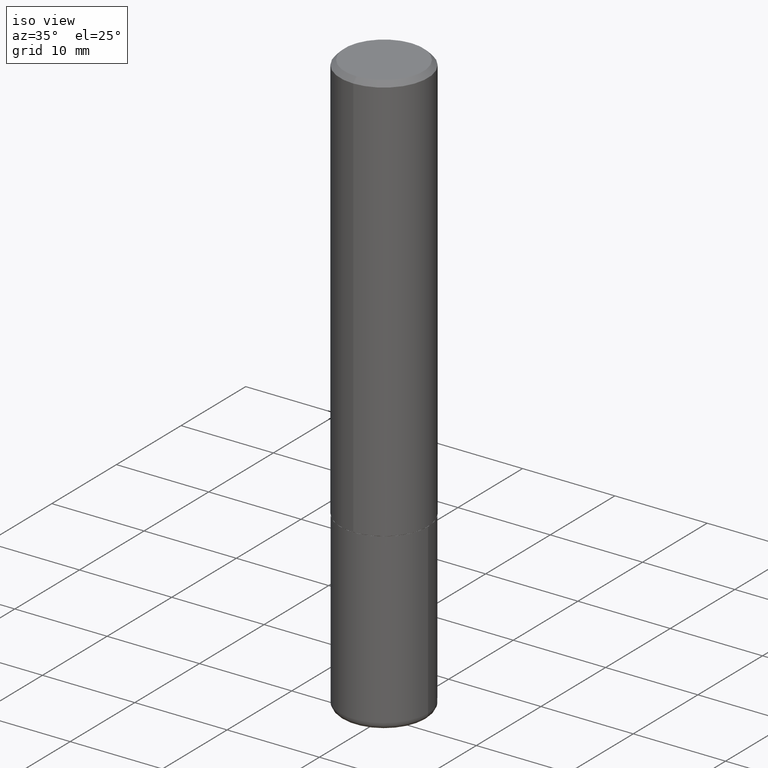
[diagram: clean part render]
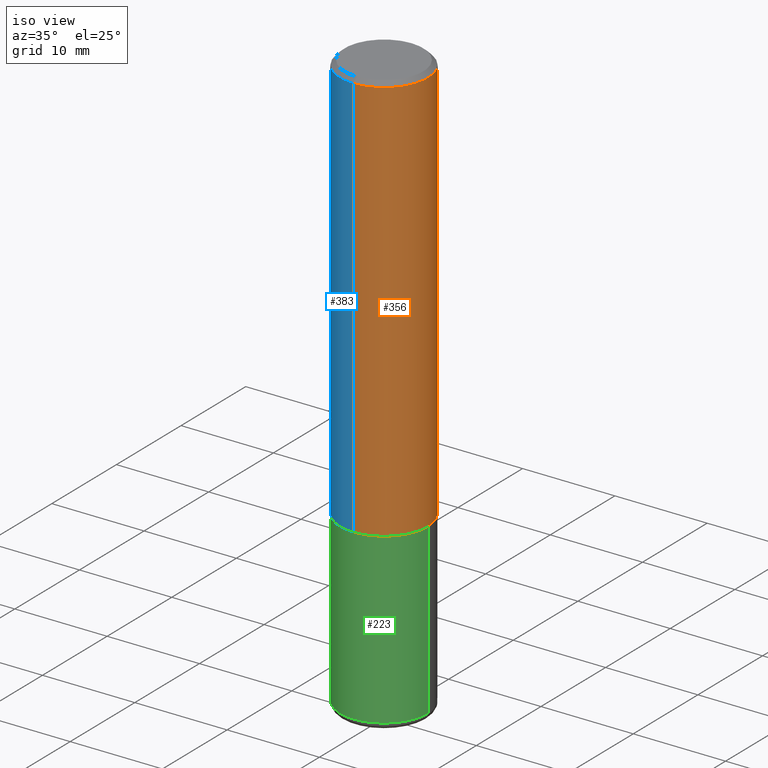
[diagram: same view with three faces highlighted in distinct colors, each labeled with its STEP entity id]
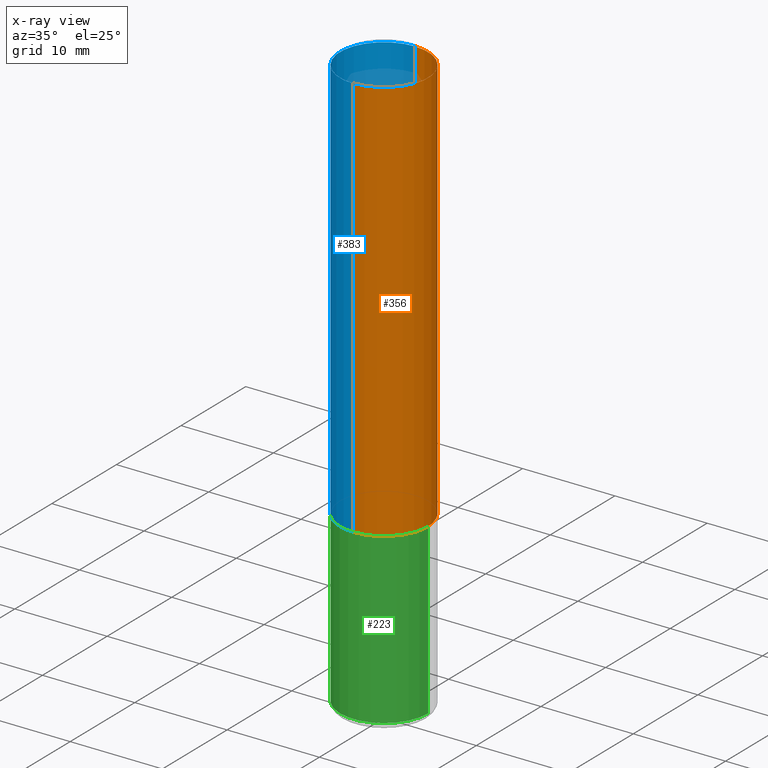
[diagram: x-ray of the same camera — body ghosted, the three highlighted faces saturated]
A machine part, iso view with three faces highlighted in distinct colors.
The next image is the same camera in x-ray (body ghosted, the three faces saturated) — at least one of them is partly hidden behind the body in this view.
Their STEP definitions:

[orange] entity #356 — the highlighted cylindrical surface (partial cylindrical patch) has radius 4.7625 mm, axis along (-0, 0, 1).
#11 = CARTESIAN_POINT ( 'NONE',  ( -1.286343374582161774E-15, -0.1875000000000001110, -0.01999999999999938632 ) ) ;
#16 = VECTOR ( 'NONE', #373, 39.37007874015748143 ) ;
#17 = DIRECTION ( 'NONE',  ( -6.982962677686265922E-15, -1.000000000000000000, 2.913971193241877216E-15 ) ) ;
#22 = CARTESIAN_POINT ( 'NONE',  ( -1.309305502066175797E-15, -0.1875000000000001110, 6.549179349999783826E-16 ) ) ;
#25 = ORIENTED_EDGE ( 'NONE', *, *, #99, .F. ) ;
#26 = EDGE_CURVE ( 'NONE', #118, #397, #109, .T. ) ;
#27 = DIRECTION ( 'NONE',  ( -2.444481195655269587E-29, 3.492895653333215411E-15, 1.000000000000000000 ) ) ;
#45 = DIRECTION ( 'NONE',  ( -2.444481195655269307E-29, 3.492895653333215411E-15, 1.000000000000000000 ) ) ;
#58 = FACE_OUTER_BOUND ( 'NONE', #161, .T. ) ;
#65 = CYLINDRICAL_SURFACE ( 'NONE', #267, 0.1875000000000001110 ) ;
#73 = CARTESIAN_POINT ( 'NONE',  ( 1.332267629550188440E-15, 0.1875000000000001110, -6.549179349999783826E-16 ) ) ;
#93 = ORIENTED_EDGE ( 'NONE', *, *, #289, .F. ) ;
#99 = EDGE_CURVE ( 'NONE', #264, #105, #112, .T. ) ;
#101 = AXIS2_PLACEMENT_3D ( 'NONE', #234, #113, #340 ) ;
#105 = VERTEX_POINT ( 'NONE', #271 ) ;
#109 = CIRCLE ( 'NONE', #394, 0.1875000000000002220 ) ;
#112 = CIRCLE ( 'NONE', #101, 0.1875000000000000555 ) ;
#113 = DIRECTION ( 'NONE',  ( -2.444481195655269587E-29, 3.492895653333215411E-15, 1.000000000000000000 ) ) ;
#118 = VERTEX_POINT ( 'NONE', #366 ) ;
#134 = LINE ( 'NONE', #22, #16 ) ;
#161 = EDGE_LOOP ( 'NONE', ( #273, #228, #25, #93 ) ) ;
#208 = EDGE_CURVE ( 'NONE', #397, #105, #334, .T. ) ;
#228 = ORIENTED_EDGE ( 'NONE', *, *, #208, .T. ) ;
#234 = CARTESIAN_POINT ( 'NONE',  ( 4.888962391310548493E-31, -6.985791306666444725E-17, -0.02000000000000003858 ) ) ;
#264 = VERTEX_POINT ( 'NONE', #11 ) ;
#267 = AXIS2_PLACEMENT_3D ( 'NONE', #288, #27, #414 ) ;
#271 = CARTESIAN_POINT ( 'NONE',  ( 1.309305502066175797E-15, 0.1874999999999999722, -0.02000000000000069084 ) ) ;
#273 = ORIENTED_EDGE ( 'NONE', *, *, #26, .T. ) ;
#288 = CARTESIAN_POINT ( 'NONE',  ( 0.000000000000000000, 0.000000000000000000, 0.000000000000000000 ) ) ;
#289 = EDGE_CURVE ( 'NONE', #118, #264, #134, .T. ) ;
#334 = LINE ( 'NONE', #73, #403 ) ;
#339 = CARTESIAN_POINT ( 'NONE',  ( 1.332267629550210528E-15, 0.1874999999999941158, -1.749000000000000554 ) ) ;
#340 = DIRECTION ( 'NONE',  ( -6.982962677686265922E-15, -1.000000000000000000, 3.483106191921934371E-15 ) ) ;
#342 = DIRECTION ( 'NONE',  ( -2.444481195655269587E-29, 3.492895653333215411E-15, 1.000000000000000000 ) ) ;
#356 = ADVANCED_FACE ( 'NONE', ( #58 ), #65, .T. ) ;
#366 = CARTESIAN_POINT ( 'NONE',  ( -1.309305502066133790E-15, -0.1875000000000063283, -1.748999999999999666 ) ) ;
#372 = CARTESIAN_POINT ( 'NONE',  ( 4.275397611201066851E-29, -6.109074497679794088E-15, -1.749000000000000110 ) ) ;
#373 = DIRECTION ( 'NONE',  ( -2.444481195655269307E-29, 3.492895653333215411E-15, 1.000000000000000000 ) ) ;
#394 = AXIS2_PLACEMENT_3D ( 'NONE', #372, #342, #17 ) ;
#397 = VERTEX_POINT ( 'NONE', #339 ) ;
#403 = VECTOR ( 'NONE', #45, 39.37007874015748143 ) ;
#414 = DIRECTION ( 'NONE',  ( -6.982962677686266711E-15, -1.000000000000000000, 3.492895653333215805E-15 ) ) ;

[blue] entity #383 — the highlighted cylindrical surface (partial cylindrical patch) has radius 4.7625 mm, axis along (-0, 0, 1).
#11 = CARTESIAN_POINT ( 'NONE',  ( -1.286343374582161774E-15, -0.1875000000000001110, -0.01999999999999938632 ) ) ;
#14 = DIRECTION ( 'NONE',  ( -6.982962677686265922E-15, -1.000000000000000000, 3.483106191921934371E-15 ) ) ;
#16 = VECTOR ( 'NONE', #373, 39.37007874015748143 ) ;
#18 = DIRECTION ( 'NONE',  ( -6.982962677686265922E-15, -1.000000000000000000, 2.913971193241877216E-15 ) ) ;
#22 = CARTESIAN_POINT ( 'NONE',  ( -1.309305502066175797E-15, -0.1875000000000001110, 6.549179349999783826E-16 ) ) ;
#28 = ORIENTED_EDGE ( 'NONE', *, *, #386, .F. ) ;
#29 = DIRECTION ( 'NONE',  ( -2.444481195655269587E-29, 3.492895653333215411E-15, 1.000000000000000000 ) ) ;
#45 = DIRECTION ( 'NONE',  ( -2.444481195655269307E-29, 3.492895653333215411E-15, 1.000000000000000000 ) ) ;
#47 = DIRECTION ( 'NONE',  ( -2.444481195655269587E-29, 3.492895653333215411E-15, 1.000000000000000000 ) ) ;
#48 = DIRECTION ( 'NONE',  ( -2.444481195655269587E-29, 3.492895653333215411E-15, 1.000000000000000000 ) ) ;
#51 = CARTESIAN_POINT ( 'NONE',  ( 4.275397611201066851E-29, -6.109074497679794088E-15, -1.749000000000000110 ) ) ;
#59 = ORIENTED_EDGE ( 'NONE', *, *, #208, .F. ) ;
#73 = CARTESIAN_POINT ( 'NONE',  ( 1.332267629550188440E-15, 0.1875000000000001110, -6.549179349999783826E-16 ) ) ;
#82 = CARTESIAN_POINT ( 'NONE',  ( 4.888962391310548493E-31, -6.985791306666444725E-17, -0.02000000000000003858 ) ) ;
#105 = VERTEX_POINT ( 'NONE', #271 ) ;
#110 = EDGE_CURVE ( 'NONE', #397, #118, #147, .T. ) ;
#118 = VERTEX_POINT ( 'NONE', #366 ) ;
#122 = AXIS2_PLACEMENT_3D ( 'NONE', #82, #47, #14 ) ;
#128 = CARTESIAN_POINT ( 'NONE',  ( 0.000000000000000000, 0.000000000000000000, 0.000000000000000000 ) ) ;
#134 = LINE ( 'NONE', #22, #16 ) ;
#147 = CIRCLE ( 'NONE', #164, 0.1875000000000002220 ) ;
#153 = ORIENTED_EDGE ( 'NONE', *, *, #110, .T. ) ;
#164 = AXIS2_PLACEMENT_3D ( 'NONE', #51, #48, #18 ) ;
#190 = CIRCLE ( 'NONE', #122, 0.1875000000000000555 ) ;
#208 = EDGE_CURVE ( 'NONE', #397, #105, #334, .T. ) ;
#211 = ORIENTED_EDGE ( 'NONE', *, *, #289, .T. ) ;
#225 = CYLINDRICAL_SURFACE ( 'NONE', #353, 0.1875000000000001110 ) ;
#264 = VERTEX_POINT ( 'NONE', #11 ) ;
#271 = CARTESIAN_POINT ( 'NONE',  ( 1.309305502066175797E-15, 0.1874999999999999722, -0.02000000000000069084 ) ) ;
#272 = DIRECTION ( 'NONE',  ( -6.982962677686266711E-15, -1.000000000000000000, 3.492895653333215805E-15 ) ) ;
#289 = EDGE_CURVE ( 'NONE', #118, #264, #134, .T. ) ;
#317 = FACE_OUTER_BOUND ( 'NONE', #347, .T. ) ;
#334 = LINE ( 'NONE', #73, #403 ) ;
#339 = CARTESIAN_POINT ( 'NONE',  ( 1.332267629550210528E-15, 0.1874999999999941158, -1.749000000000000554 ) ) ;
#347 = EDGE_LOOP ( 'NONE', ( #59, #153, #211, #28 ) ) ;
#353 = AXIS2_PLACEMENT_3D ( 'NONE', #128, #29, #272 ) ;
#366 = CARTESIAN_POINT ( 'NONE',  ( -1.309305502066133790E-15, -0.1875000000000063283, -1.748999999999999666 ) ) ;
#373 = DIRECTION ( 'NONE',  ( -2.444481195655269307E-29, 3.492895653333215411E-15, 1.000000000000000000 ) ) ;
#383 = ADVANCED_FACE ( 'NONE', ( #317 ), #225, .T. ) ;
#386 = EDGE_CURVE ( 'NONE', #105, #264, #190, .T. ) ;
#397 = VERTEX_POINT ( 'NONE', #339 ) ;
#403 = VECTOR ( 'NONE', #45, 39.37007874015748143 ) ;

[green] entity #223 — the highlighted cylindrical surface (partial cylindrical patch) has radius 4.7625 mm, axis along (-0, 0, 1).
#3 = AXIS2_PLACEMENT_3D ( 'NONE', #144, #333, #50 ) ;
#5 = CARTESIAN_POINT ( 'NONE',  ( 0.1875000000000000278, -7.419397845041680468E-15, -1.750000000000000222 ) ) ;
#6 = DIRECTION ( 'NONE',  ( 1.000000000000000000, -6.982962677686266711E-15, 4.876176775795935793E-29 ) ) ;
#19 = ORIENTED_EDGE ( 'NONE', *, *, #255, .F. ) ;
#50 = DIRECTION ( 'NONE',  ( 1.000000000000000000, -6.982962677686269077E-15, 0.000000000000000000 ) ) ;
#90 = EDGE_CURVE ( 'NONE', #237, #194, #358, .T. ) ;
#137 = ORIENTED_EDGE ( 'NONE', *, *, #321, .F. ) ;
#142 = CIRCLE ( 'NONE', #227, 0.1875000000000000278 ) ;
#144 = CARTESIAN_POINT ( 'NONE',  ( 6.040307951277287977E-29, -8.623958906942569995E-15, -2.470000000000000195 ) ) ;
#149 = CARTESIAN_POINT ( 'NONE',  ( 0.000000000000000000, 0.000000000000000000, 0.000000000000000000 ) ) ;
#156 = VECTOR ( 'NONE', #361, 39.37007874015748143 ) ;
#168 = DIRECTION ( 'NONE',  ( -2.445468806185136877E-29, 3.491481338843145188E-15, 1.000000000000000000 ) ) ;
#173 = CYLINDRICAL_SURFACE ( 'NONE', #395, 0.1874999999999999722 ) ;
#177 = CIRCLE ( 'NONE', #3, 0.1874999999999999722 ) ;
#194 = VERTEX_POINT ( 'NONE', #5 ) ;
#195 = CARTESIAN_POINT ( 'NONE',  ( -0.1875000000000000278, -6.034757995408850668E-15, -1.750000000000000222 ) ) ;
#213 = CARTESIAN_POINT ( 'NONE',  ( -0.1874999999999999722, -7.291691277392382147E-15, -2.470000000000000195 ) ) ;
#219 = EDGE_LOOP ( 'NONE', ( #137, #322, #282, #19 ) ) ;
#223 = ADVANCED_FACE ( 'NONE', ( #328 ), #173, .T. ) ;
#227 = AXIS2_PLACEMENT_3D ( 'NONE', #374, #310, #359 ) ;
#230 = CARTESIAN_POINT ( 'NONE',  ( -0.1874999999999999722, 1.332267629550187651E-15, -9.223003294227946589E-30 ) ) ;
#237 = VERTEX_POINT ( 'NONE', #305 ) ;
#238 = VECTOR ( 'NONE', #168, 39.37007874015748143 ) ;
#239 = CARTESIAN_POINT ( 'NONE',  ( 0.1874999999999999722, -1.309305502066174811E-15, 9.142831454617378210E-30 ) ) ;
#255 = EDGE_CURVE ( 'NONE', #382, #194, #142, .T. ) ;
#282 = ORIENTED_EDGE ( 'NONE', *, *, #90, .T. ) ;
#299 = DIRECTION ( 'NONE',  ( -2.445468806185136597E-29, 3.491481338843145583E-15, 1.000000000000000000 ) ) ;
#305 = CARTESIAN_POINT ( 'NONE',  ( 0.1874999999999999722, -9.933264409008746581E-15, -2.470000000000000195 ) ) ;
#310 = DIRECTION ( 'NONE',  ( -2.445468806185136597E-29, 3.491481338843145583E-15, 1.000000000000000000 ) ) ;
#321 = EDGE_CURVE ( 'NONE', #387, #382, #384, .T. ) ;
#322 = ORIENTED_EDGE ( 'NONE', *, *, #416, .T. ) ;
#328 = FACE_OUTER_BOUND ( 'NONE', #219, .T. ) ;
#333 = DIRECTION ( 'NONE',  ( -2.445468806185136597E-29, 3.491481338843145583E-15, 1.000000000000000000 ) ) ;
#358 = LINE ( 'NONE', #239, #156 ) ;
#359 = DIRECTION ( 'NONE',  ( 1.000000000000000000, -6.982962677686266711E-15, 0.000000000000000000 ) ) ;
#361 = DIRECTION ( 'NONE',  ( -2.445468806185136877E-29, 3.491481338843145188E-15, 1.000000000000000000 ) ) ;
#374 = CARTESIAN_POINT ( 'NONE',  ( 4.279570410823989044E-29, -6.110092342975505460E-15, -1.750000000000000222 ) ) ;
#382 = VERTEX_POINT ( 'NONE', #195 ) ;
#384 = LINE ( 'NONE', #230, #238 ) ;
#387 = VERTEX_POINT ( 'NONE', #213 ) ;
#395 = AXIS2_PLACEMENT_3D ( 'NONE', #149, #299, #6 ) ;
#416 = EDGE_CURVE ( 'NONE', #387, #237, #177, .T. ) ;